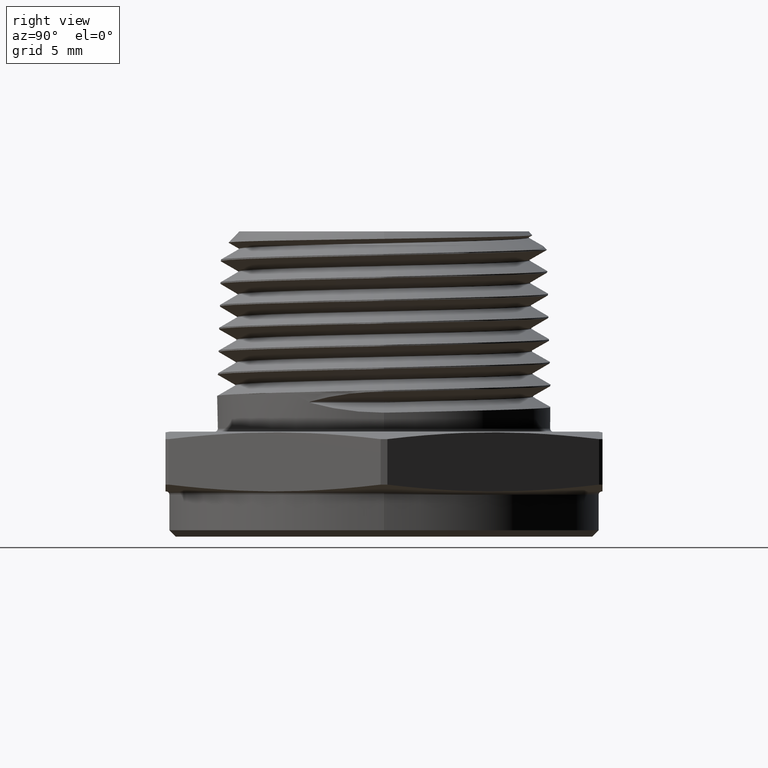
[diagram: clean part render]
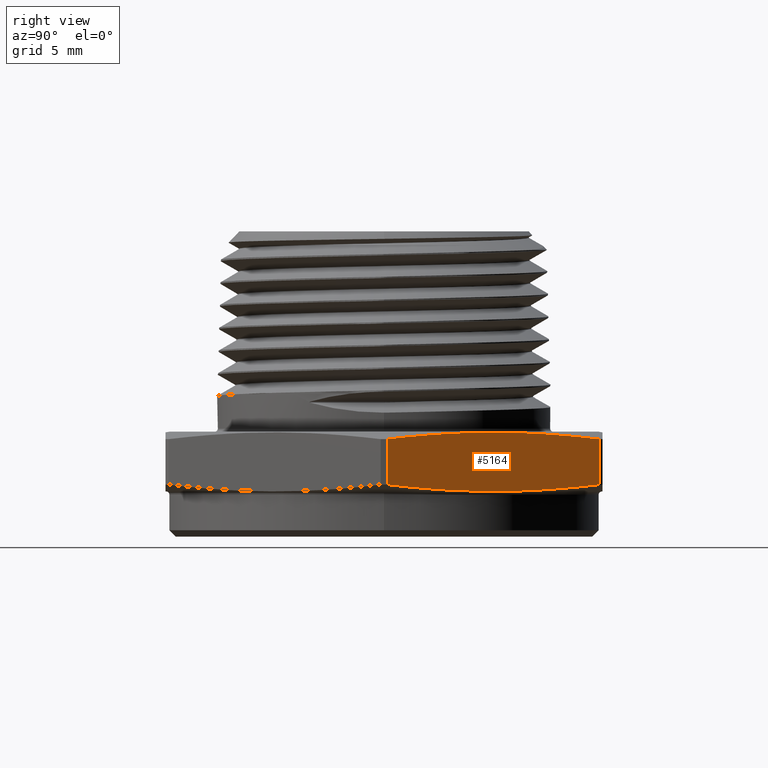
[diagram: same view with one face highlighted and labeled with its STEP entity id]
A machine part, right view. The second image highlights one B-rep face of the part: STEP entity #5164.
In plain terms, the highlighted planar face has unit normal (-0.866, -0.5, 0).
Its self-contained STEP definition (entity closure, byte-faithful):
#106 = CARTESIAN_POINT ( 'NONE',  ( 0.4029984657854861500, 0.6769861818872293700, 0.1665429762664239500 ) ) ;
#107 = CARTESIAN_POINT ( 'NONE',  ( 0.4350641323382052300, 0.6214468182393578800, 0.1732005979591585400 ) ) ;
#108 = CARTESIAN_POINT ( 'NONE',  ( 0.4671297988909244900, 0.5659074545914861700, 0.1785865953667216700 ) ) ;
#109 = CARTESIAN_POINT ( 'NONE',  ( 0.5312611319963626000, 0.4548287272957430300, 0.1859337814919881900 ) ) ;
#110 = CARTESIAN_POINT ( 'NONE',  ( 0.5953924651018011000, 0.3437500000000000000, 0.1898150872746113300 ) ) ;
#111 = CARTESIAN_POINT ( 'NONE',  ( 0.6595237982072397200, 0.2326712727042569200, 0.1859337814919881900 ) ) ;
#112 = CARTESIAN_POINT ( 'NONE',  ( 0.7236551313126778900, 0.1215925454085138600, 0.1785865953667216100 ) ) ;
#113 = CARTESIAN_POINT ( 'NONE',  ( 0.7557207978653972500, 0.06605318176064241300, 0.1732005979591584000 ) ) ;
#114 = CARTESIAN_POINT ( 'NONE',  ( 0.7877864644181163900, 0.01051381811277092900, 0.1665429762664238900 ) ) ;
#237 = CARTESIAN_POINT ( 'NONE',  ( 0.7877864644181165100, 0.01051381811277093300, -2.414518810487357800E-017 ) ) ;
#238 = DIRECTION ( 'NONE',  ( -1.254986547952384500E-016, -0.0000000000000000000, -1.000000000000000000 ) ) ;
#249 = CARTESIAN_POINT ( 'NONE',  ( 0.4029984657854862000, 0.6769861818872294800, 2.414518810487357800E-017 ) ) ;
#250 = DIRECTION ( 'NONE',  ( 1.254986547952384500E-016, 0.0000000000000000000, 1.000000000000000000 ) ) ;
#754 = LINE ( 'NONE', #237, #757 ) ;
#757 = VECTOR ( 'NONE', #238, 39.37007874015748100 ) ;
#762 = LINE ( 'NONE', #249, #765 ) ;
#765 = VECTOR ( 'NONE', #250, 39.37007874015748100 ) ;
#1171 = CARTESIAN_POINT ( 'NONE',  ( 0.7877864644181165100, 0.01051381811277093300, 0.02345702373357588100 ) ) ;
#1173 = CARTESIAN_POINT ( 'NONE',  ( 0.4029984657854861500, 0.6769861818872293700, 0.1665429762664239500 ) ) ;
#1174 = CARTESIAN_POINT ( 'NONE',  ( 0.4029984657854861500, 0.6769861818872293700, 0.02345702373357573200 ) ) ;
#1178 = CARTESIAN_POINT ( 'NONE',  ( 0.7877864644181163900, 0.01051381811277092900, 0.1665429762664238900 ) ) ;
#3009 = AXIS2_PLACEMENT_3D ( 'NONE', #3048, #3053, #3054 ) ;
#3047 = PLANE ( 'NONE',  #3009 ) ;
#3048 = CARTESIAN_POINT ( 'NONE',  ( 0.7938566201357352100, 1.707404996040164500E-016, 0.1899999999999999700 ) ) ;
#3053 = DIRECTION ( 'NONE',  ( -0.8660254037844383700, -0.5000000000000004400, 0.0000000000000000000 ) ) ;
#3054 = DIRECTION ( 'NONE',  ( 0.5000000000000004400, -0.8660254037844383700, 0.0000000000000000000 ) ) ;
#3393 = B_SPLINE_CURVE_WITH_KNOTS ( 'NONE', 3,
 ( #4571, #4566, #4567, #4572, #4573, #4574, #4575, #4576, #4577 ),
 .UNSPECIFIED., .F., .F.,
 ( 4, 2, 1, 2, 4 ),
 ( 1.926409279489008800E-006, 0.004888733991913888000, 0.009775541574548287900, 0.01466234915718268700, 0.01954915673981708400 ),
 .UNSPECIFIED. ) ;
#3394 = B_SPLINE_CURVE_WITH_KNOTS ( 'NONE', 3,
 ( #106, #107, #108, #109, #110, #111, #112, #113, #114 ),
 .UNSPECIFIED., .F., .F.,
 ( 4, 2, 1, 2, 4 ),
 ( 1.926409279393785400E-006, 0.004888733991913792600, 0.009775541574548192400, 0.01466234915718259100, 0.01954915673981699000 ),
 .UNSPECIFIED. ) ;
#4289 = EDGE_CURVE ( 'NONE', #4807, #4810, #3393, .T. ) ;
#4295 = EDGE_CURVE ( 'NONE', #4809, #4814, #3394, .T. ) ;
#4321 = EDGE_CURVE ( 'NONE', #4814, #4807, #754, .T. ) ;
#4326 = EDGE_CURVE ( 'NONE', #4810, #4809, #762, .T. ) ;
#4566 = CARTESIAN_POINT ( 'NONE',  ( 0.7557207978653969200, 0.06605318176064241300, 0.01679940204084119300 ) ) ;
#4567 = CARTESIAN_POINT ( 'NONE',  ( 0.7236551313126778900, 0.1215925454085139000, 0.01141340463327803300 ) ) ;
#4571 = CARTESIAN_POINT ( 'NONE',  ( 0.7877864644181165100, 0.01051381811277093300, 0.02345702373357588100 ) ) ;
#4572 = CARTESIAN_POINT ( 'NONE',  ( 0.6595237982072396100, 0.2326712727042569700, 0.004066218508011448800 ) ) ;
#4573 = CARTESIAN_POINT ( 'NONE',  ( 0.5953924651018013300, 0.3437500000000003300, 0.0001849127253884832200 ) ) ;
#4574 = CARTESIAN_POINT ( 'NONE',  ( 0.5312611319963629300, 0.4548287272957430300, 0.004066218508011470500 ) ) ;
#4575 = CARTESIAN_POINT ( 'NONE',  ( 0.4671297988909246500, 0.5659074545914861700, 0.01141340463327805200 ) ) ;
#4576 = CARTESIAN_POINT ( 'NONE',  ( 0.4350641323382053400, 0.6214468182393577700, 0.01679940204084122100 ) ) ;
#4577 = CARTESIAN_POINT ( 'NONE',  ( 0.4029984657854861500, 0.6769861818872293700, 0.02345702373357573200 ) ) ;
#4723 = FACE_OUTER_BOUND ( 'NONE', #5077, .T. ) ;
#4807 = VERTEX_POINT ( 'NONE', #1171 ) ;
#4809 = VERTEX_POINT ( 'NONE', #1173 ) ;
#4810 = VERTEX_POINT ( 'NONE', #1174 ) ;
#4814 = VERTEX_POINT ( 'NONE', #1178 ) ;
#5077 = EDGE_LOOP ( 'NONE', ( #5661, #5662, #5663, #5664 ) ) ;
#5164 = ADVANCED_FACE ( 'NONE', ( #4723 ), #3047, .F. ) ;
#5661 = ORIENTED_EDGE ( 'NONE', *, *, #4289, .T. ) ;
#5662 = ORIENTED_EDGE ( 'NONE', *, *, #4326, .T. ) ;
#5663 = ORIENTED_EDGE ( 'NONE', *, *, #4295, .T. ) ;
#5664 = ORIENTED_EDGE ( 'NONE', *, *, #4321, .T. ) ;